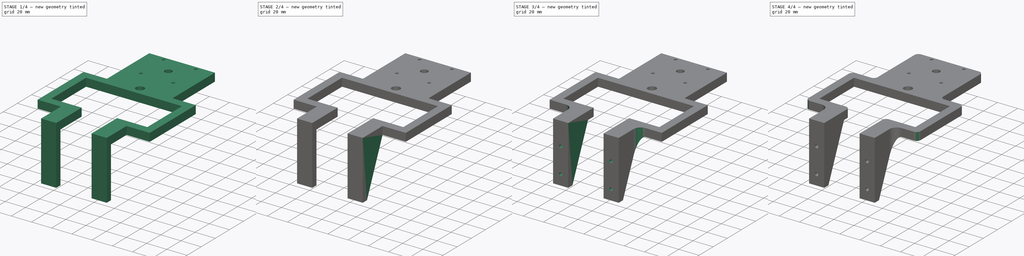
[diagram: build sequence overview — one tinted view per stage of 4, left to right]
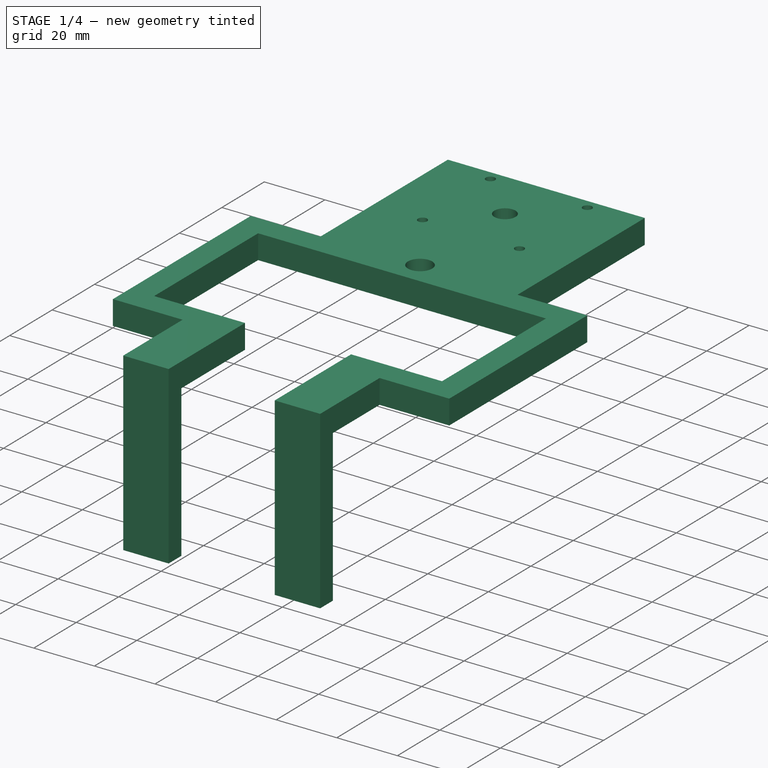
[diagram: stage 1 of 4 — iso view after this stage's code; geometry added in this stage tinted green]
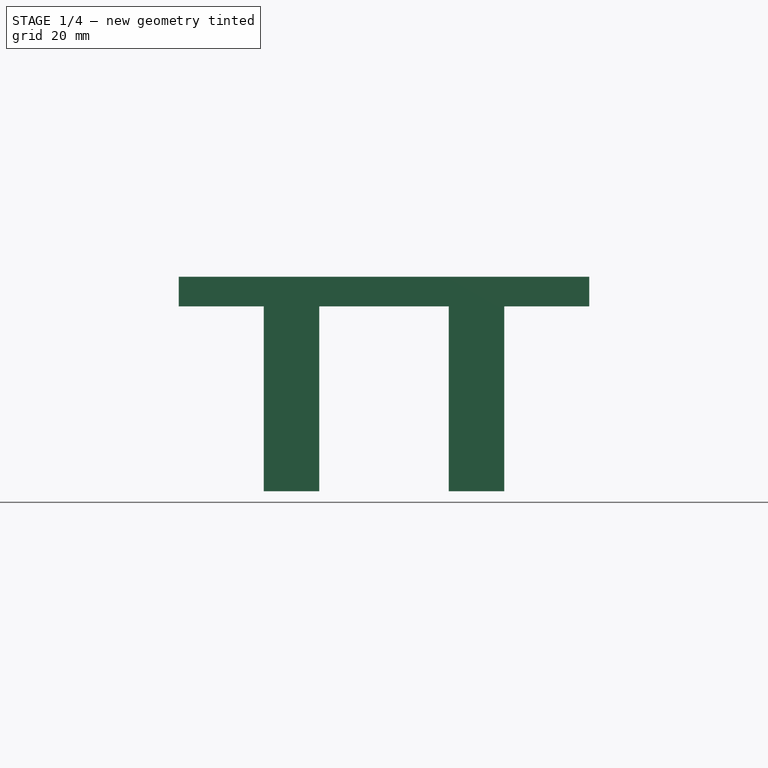
[diagram: stage 1 of 4 — front view after this stage's code; geometry added in this stage tinted green]
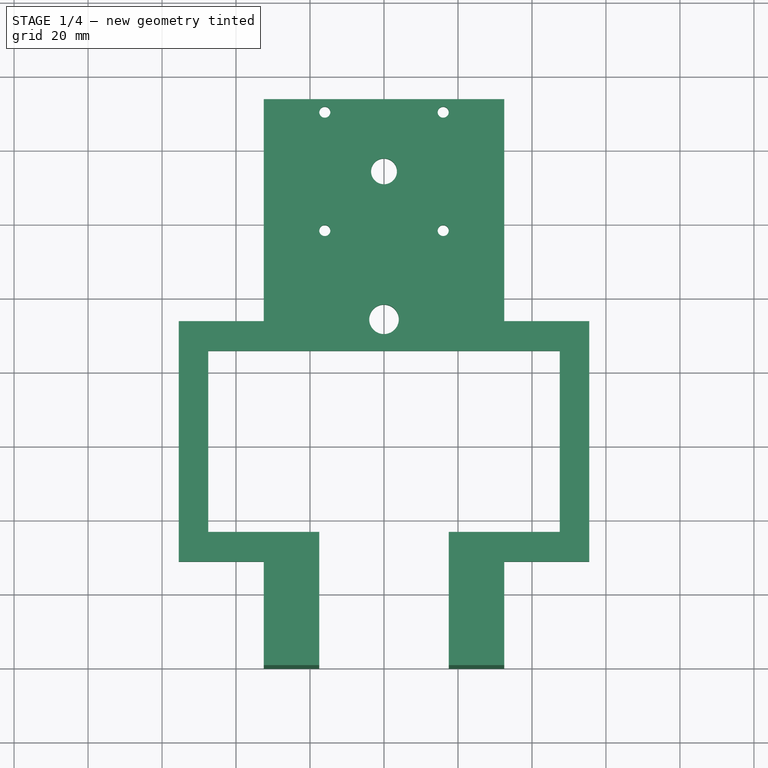
[diagram: stage 1 of 4 — top view after this stage's code; geometry added in this stage tinted green]
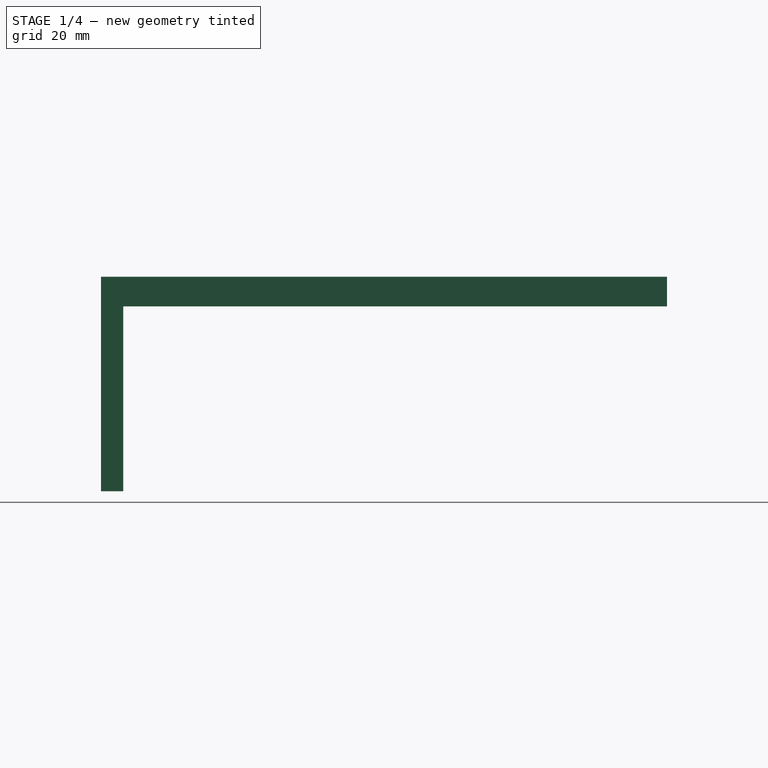
[diagram: stage 1 of 4 — right view after this stage's code; geometry added in this stage tinted green]
FCSTD DOCUMENT  (FreeCAD 1.0R39109 (Git))
Label: head_main_plate_mk2
License: All rights reserved
LicenseURL: http://en.wikipedia.org/wiki/All_rights_reserved
objects: Sketcher::SketchObject×7, PartDesign::Pad×6, PartDesign::Fillet×3, PartDesign::Pocket×1, PartDesign::Body×1
note: 45 computed .brp shape members not serialized (recipe doc carries the construction recipe); baked Part::Feature solids carry a one-line shape summary decoded from their .brp

FEATURE [Sketcher::SketchObject] Sketch
  ArcFitTolerance = 1e-06
  AttachmentSupport = -> [XY_Plane]
  FullyConstrained = true
  MakeInternals = false
  MapMode = 5
  sketch-geometry (28):
    g0: LineSegment StartX=-17.5 StartY=0 StartZ=0 EndX=-32.5 EndY=0 EndZ=0
    g1: LineSegment StartX=-32.5 StartY=153 StartZ=0 EndX=32.5 EndY=153 EndZ=0
    g2: LineSegment StartX=32.5 StartY=0 StartZ=0 EndX=17.5 EndY=0 EndZ=0
    g3: LineSegment StartX=17.5 StartY=85 StartZ=0 EndX=-17.5 EndY=85 EndZ=0
    g4: Circle CenterX=0 CenterY=93.5 CenterZ=0 NormalX=0 NormalY=0 NormalZ=1 AngleXU=0 Radius=4
    g5: Circle CenterX=0 CenterY=133.5 CenterZ=0 NormalX=0 NormalY=0 NormalZ=1 AngleXU=0 Radius=3.5
    g6: Circle CenterX=-16 CenterY=149.5 CenterZ=0 NormalX=0 NormalY=0 NormalZ=1 AngleXU=0 Radius=1.5
    g7: Circle CenterX=16 CenterY=149.5 CenterZ=0 NormalX=0 NormalY=0 NormalZ=1 AngleXU=0 Radius=1.5
    g8: Circle CenterX=16 CenterY=117.5 CenterZ=0 NormalX=0 NormalY=0 NormalZ=1 AngleXU=0 Radius=1.5
    g9: Circle CenterX=-16 CenterY=117.5 CenterZ=0 NormalX=0 NormalY=0 NormalZ=1 AngleXU=0 Radius=1.5
    g10: LineSegment StartX=32.5 StartY=0 StartZ=0 EndX=32.5 EndY=28 EndZ=0
    g11: LineSegment StartX=32.5 StartY=28 StartZ=0 EndX=55.5 EndY=28 EndZ=0
    g12: LineSegment StartX=55.5 StartY=28 StartZ=0 EndX=55.5 EndY=93 EndZ=0
    g13: LineSegment StartX=55.5 StartY=93 StartZ=0 EndX=32.5 EndY=93 EndZ=0
    g14: LineSegment StartX=32.5 StartY=93 StartZ=0 EndX=32.5 EndY=153 EndZ=0
    g15: LineSegment StartX=-32.5 StartY=153 StartZ=0 EndX=-32.5 EndY=93 EndZ=0
    g16: LineSegment StartX=-32.5 StartY=93 StartZ=0 EndX=-55.5 EndY=93 EndZ=0
    g17: LineSegment StartX=-55.5 StartY=93 StartZ=0 EndX=-55.5 EndY=28 EndZ=0
    g18: LineSegment StartX=-55.5 StartY=28 StartZ=0 EndX=-32.5 EndY=28 EndZ=0
    g19: LineSegment StartX=-32.5 StartY=28 StartZ=0 EndX=-32.5 EndY=0 EndZ=0
    g20: LineSegment StartX=-17.5 StartY=0 StartZ=0 EndX=-17.5 EndY=36 EndZ=0
    g21: LineSegment StartX=-17.5 StartY=36 StartZ=0 EndX=-47.5 EndY=36 EndZ=0
    g22: LineSegment StartX=-47.5 StartY=36 StartZ=0 EndX=-47.5 EndY=85 EndZ=0
    g23: LineSegment StartX=-47.5 StartY=85 StartZ=0 EndX=-17.5 EndY=85 EndZ=0
    g24: LineSegment StartX=17.5 StartY=85 StartZ=0 EndX=47.5 EndY=85 EndZ=0
    g25: LineSegment StartX=47.5 StartY=85 StartZ=0 EndX=47.5 EndY=36 EndZ=0
    g26: LineSegment StartX=47.5 StartY=36 StartZ=0 EndX=17.5 EndY=36 EndZ=0
    g27: LineSegment StartX=17.5 StartY=36 StartZ=0 EndX=17.5 EndY=0 EndZ=0
  constraints (81):
    c: PointOnObject(g0,g-1)
    c: PointOnObject(g0,g-1)
    c: PointOnObject(g2,g-1)
    c: Diameter(g4) = 8
    c: PointOnObject(g4,g-2)
    c: DistanceY(g-1,g4) = 93.5
    c: PointOnObject(g5,g-2)
    c: Diameter(g5) = 7
    c: DistanceY(g4,g5) = 40
    c: Diameter(g6) = 3
    c: Diameter(g8) = 3
    c: Diameter(g9) = 3
    c: Diameter(g7) = 3
    c: Horizontal(g7,g6)
    c: Horizontal(g8,g9)
    c: Vertical(g8,g7)
    c: Vertical(g9,g6)
    c: DistanceX(g6,g5) = 16
    c: DistanceX(g5,g8) = 16
    c: DistanceY(g5,g7) = 16
    c: DistanceY(g8,g7) = 32
    c: Symmetric(g2,g0,g-1)
    c: DistanceX(g0,g2) = 65
    c: DistanceX(g2,g2) = 15
    c: Symmetric(g3,g3,g-2)
    c: DistanceY(g2,g3) = 85
    c: DistanceY(g2,g1) = 153
    c: Coincident(g2,g10)
    c: Vertical(g10)
    c: Coincident(g10,g11)
    c: Horizontal(g11)
    c: Coincident(g11,g12)
    c: Vertical(g12)
    c: Coincident(g12,g13)
    c: Horizontal(g13)
    c: Coincident(g13,g14)
    c: Coincident(g14,g1)
    c: Vertical(g14)
    c: Coincident(g1,g15)
    c: Vertical(g15)
    c: Coincident(g15,g16)
    c: Horizontal(g16)
    c: Vertical(g17)
    c: Coincident(g17,g18)
    c: Horizontal(g18)
    c: Coincident(g18,g19)
    c: Coincident(g19,g0)
    c: Coincident(g0,g20)
    c: Vertical(g20)
    c: Coincident(g20,g21)
    c: Horizontal(g21)
    c: Coincident(g21,g22)
    c: Vertical(g22)
    c: Coincident(g22,g23)
    c: Horizontal(g23)
    c: Horizontal(g24)
    c: Coincident(g24,g25)
    c: Vertical(g25)
    c: Coincident(g25,g26)
    c: Horizontal(g26)
    c: Coincident(g26,g27)
    c: Coincident(g27,g2)
    c: Vertical(g27)
    c: Vertical(g19)
    c: DistanceY(g10,g10) = 28
    c: DistanceY(g19,g19) = 28
    c: DistanceY(g27,g27) = 36
    c: DistanceY(g20,g20) = 36
    c: DistanceX(g0,g0) = 15
    c: DistanceX(g21,g21) = 30
    c: DistanceX(g26,g26) = 30
    c: Symmetric(g1,g1,g-2)
    c: DistanceX(g1,g1) = 65
    c: Coincident(g3,g24)
    c: Coincident(g23,g3)
    c: DistanceX(g25,g11) = 8
    c: DistanceY(g24,g12) = 8
    c: DistanceY(g22,g16) = 8
    c: DistanceX(g16,g22) = 8
    c: DistanceX(g3,g3) = 35
    c: Coincident(g17,g16)
FEATURE [PartDesign::Pad] Pad
  Direction = (0,0,1)
  Length = 8
  Length2 = 10
  Profile = -> Sketch
  ReferenceAxis = -> Sketch [N_Axis]
  Refine = true
  Suppressed = false
  Type = 0
FEATURE [Sketcher::SketchObject] Sketch001
  ArcFitTolerance = 1e-06
  AttachmentSupport = -> [Pad]
  ExternalGeometry = -> [Pad]
  FullyConstrained = true
  MakeInternals = false
  MapMode = 5
  Placement = pos=(0,0,0) rot=(1,0,0;3.14159rad)
  sketch-geometry (8):
    g0: LineSegment StartX=-32.5 StartY=0 StartZ=0 EndX=-32.5 EndY=-6 EndZ=0
    g1: LineSegment StartX=-32.5 StartY=-6 StartZ=0 EndX=-17.5 EndY=-6 EndZ=0
    g2: LineSegment StartX=-17.5 StartY=-6 StartZ=0 EndX=-17.5 EndY=0 EndZ=0
    g3: LineSegment StartX=-17.5 StartY=0 StartZ=0 EndX=-32.5 EndY=0 EndZ=0
    g4: LineSegment StartX=17.5 StartY=0 StartZ=0 EndX=17.5 EndY=-6 EndZ=0
    g5: LineSegment StartX=17.5 StartY=-6 StartZ=0 EndX=32.5 EndY=-6 EndZ=0
    g6: LineSegment StartX=32.5 StartY=-6 StartZ=0 EndX=32.5 EndY=0 EndZ=0
    g7: LineSegment StartX=32.5 StartY=0 StartZ=0 EndX=17.5 EndY=0 EndZ=0
  constraints (22):
    c: Coincident(g0,g1)
    c: Coincident(g1,g2)
    c: Coincident(g2,g3)
    c: Coincident(g3,g0)
    c: Vertical(g0)
    c: Vertical(g2)
    c: Horizontal(g1)
    c: Horizontal(g3)
    c: Coincident(g0,g-6)
    c: PointOnObject(g1,g-3)
    c: Coincident(g4,g5)
    c: Coincident(g5,g6)
    c: Coincident(g6,g7)
    c: Coincident(g7,g4)
    c: Vertical(g4)
    c: Vertical(g6)
    c: Horizontal(g5)
    c: Horizontal(g7)
    c: Coincident(g4,g-4)
    c: PointOnObject(g5,g-5)
    c: DistanceY(g6,g6) = 6
    c: DistanceY(g2,g2) = 6
FEATURE [PartDesign::Pad] Pad001
  BaseFeature = -> Pad
  Direction = (0,0,-1)
  Length = 50
  Length2 = 10
  Profile = -> Sketch001
  ReferenceAxis = -> Sketch001 [N_Axis]
  Refine = true
  Suppressed = false
  Type = 0
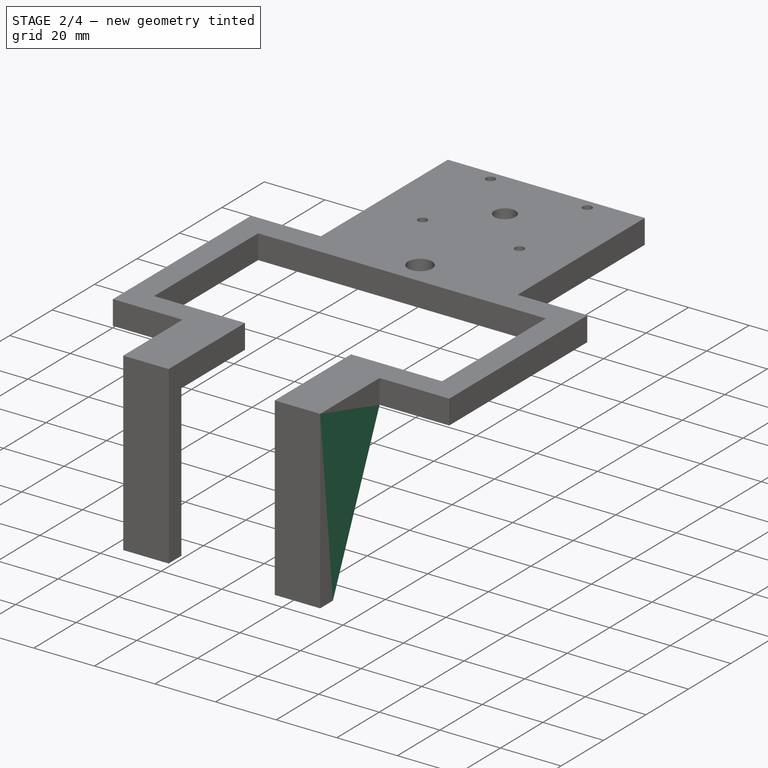
[diagram: stage 2 of 4 — iso view after this stage's code; geometry added in this stage tinted green]
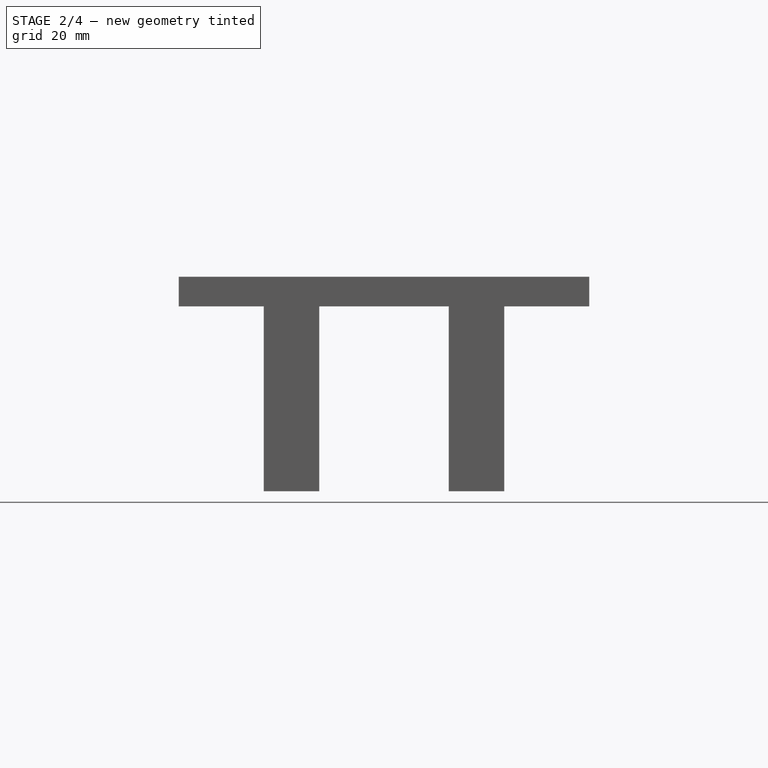
[diagram: stage 2 of 4 — front view after this stage's code; geometry added in this stage tinted green]
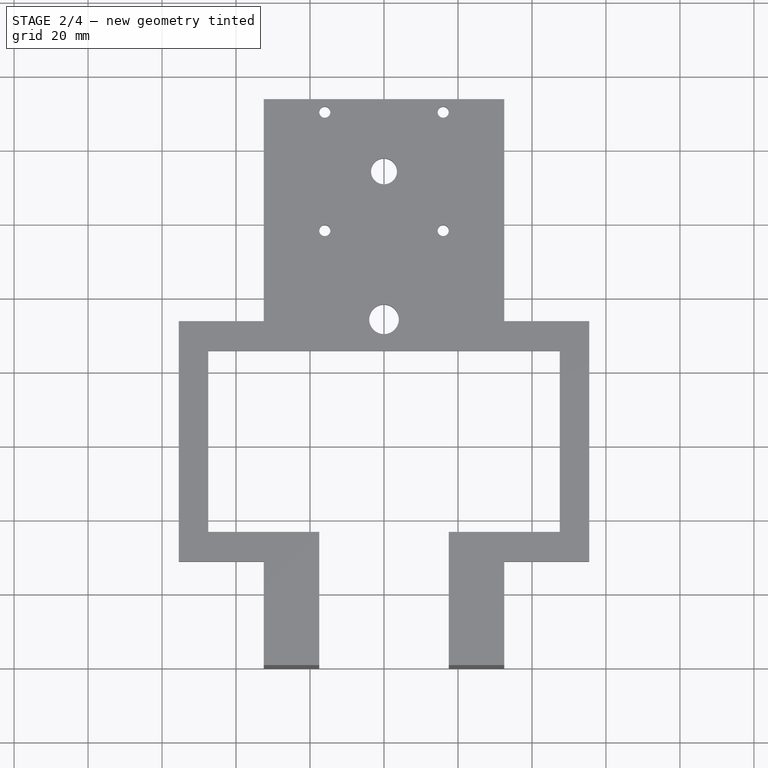
[diagram: stage 2 of 4 — top view after this stage's code; geometry added in this stage tinted green]
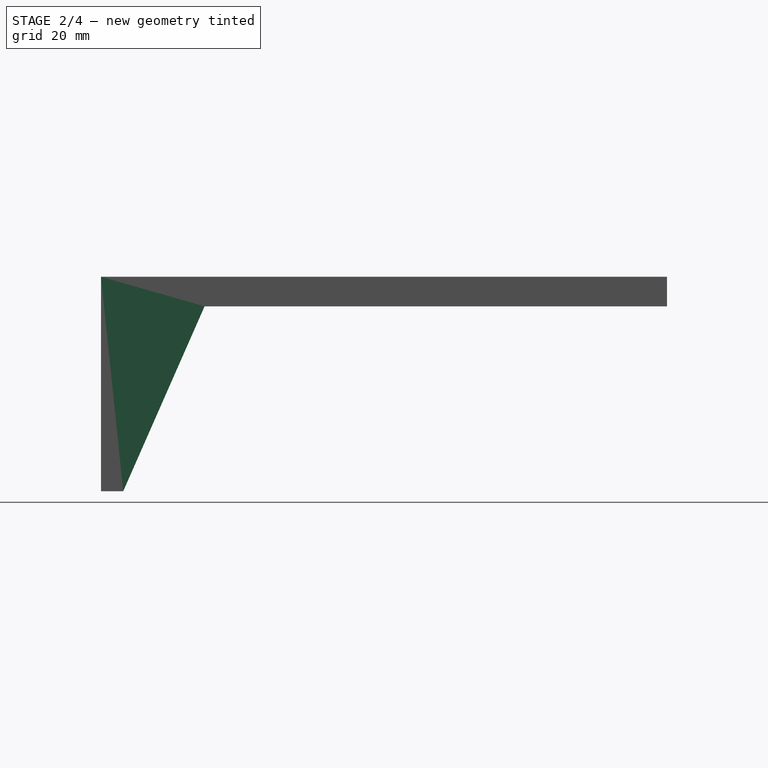
[diagram: stage 2 of 4 — right view after this stage's code; geometry added in this stage tinted green]
FEATURE [Sketcher::SketchObject] Sketch002
  ArcFitTolerance = 1e-06
  AttachmentSupport = -> [Pad001]
  ExternalGeometry = -> [Pad001]
  FullyConstrained = true
  MakeInternals = false
  MapMode = 5
  Placement = pos=(32.5,0,0) rot=(0.57735,0.57735,0.57735;2.0944rad)
  sketch-geometry (3):
    g0: LineSegment StartX=6 StartY=0 StartZ=0 EndX=6 EndY=-50 EndZ=0
    g1: LineSegment StartX=6 StartY=-50 StartZ=0 EndX=28 EndY=0 EndZ=0
    g2: LineSegment StartX=28 StartY=0 StartZ=0 EndX=6 EndY=0 EndZ=0
  constraints (6):
    c: Coincident(g-4,g0)
    c: Coincident(g0,g-3)
    c: Coincident(g0,g1)
    c: Coincident(g1,g-4)
    c: Coincident(g1,g2)
    c: Coincident(g2,g0)
FEATURE [PartDesign::Pad] Pad002
  BaseFeature = -> Pad001
  Direction = (1,0,0)
  Length = 2.5
  Length2 = 10
  Profile = -> Sketch002
  ReferenceAxis = -> Sketch002 [N_Axis]
  Refine = true
  Reversed = true
  Suppressed = false
  Type = 0
FEATURE [Sketcher::SketchObject] Sketch003
  ArcFitTolerance = 1e-06
  AttachmentSupport = -> [Pad002]
  ExternalGeometry = -> [Pad002]
  FullyConstrained = true
  MakeInternals = false
  MapMode = 5
  Placement = pos=(17.5,0,0) rot=(0.57735,-0.57735,-0.57735;2.0944rad)
  sketch-geometry (3):
    g0: LineSegment StartX=-6 StartY=0 StartZ=0 EndX=-28 EndY=0 EndZ=0
    g1: LineSegment StartX=-28 StartY=0 StartZ=0 EndX=-6 EndY=-50 EndZ=0
    g2: LineSegment StartX=-6 StartY=-50 StartZ=0 EndX=-6 EndY=0 EndZ=0
  constraints (6):
    c: Coincident(g-4,g0)
    c: Coincident(g0,g-3)
    c: Coincident(g0,g1)
    c: Coincident(g1,g-4)
    c: Coincident(g1,g2)
    c: Coincident(g2,g0)
FEATURE [PartDesign::Pad] Pad003
  BaseFeature = -> Pad002
  Direction = (-1,0,0)
  Length = 2.5
  Length2 = 10
  Profile = -> Sketch003
  ReferenceAxis = -> Sketch003 [N_Axis]
  Refine = true
  Reversed = true
  Suppressed = false
  Type = 0
FEATURE [Sketcher::SketchObject] Sketch004
  ArcFitTolerance = 1e-06
  AttachmentSupport = -> [Pad003]
  ExternalGeometry = -> [Pad003]
  FullyConstrained = true
  MakeInternals = false
  MapMode = 5
  Placement = pos=(-32.5,0,0) rot=(0.57735,-0.57735,-0.57735;2.0944rad)
  sketch-geometry (3):
    g0: LineSegment StartX=-6 StartY=-50 StartZ=0 EndX=-6 EndY=0 EndZ=0
    g1: LineSegment StartX=-6 StartY=0 StartZ=0 EndX=-28 EndY=0 EndZ=0
    g2: LineSegment StartX=-28 StartY=0 StartZ=0 EndX=-6 EndY=-50 EndZ=0
  constraints (6):
    c: Coincident(g-3,g0)
    c: Coincident(g0,g-4)
    c: Coincident(g0,g1)
    c: Coincident(g1,g-4)
    c: Coincident(g1,g2)
    c: Coincident(g2,g0)
FEATURE [PartDesign::Pad] Pad004
  BaseFeature = -> Pad003
  Direction = (-1,0,0)
  Length = 2.5
  Length2 = 10
  Profile = -> Sketch004
  ReferenceAxis = -> Sketch004 [N_Axis]
  Refine = true
  Reversed = true
  Suppressed = false
  Type = 0
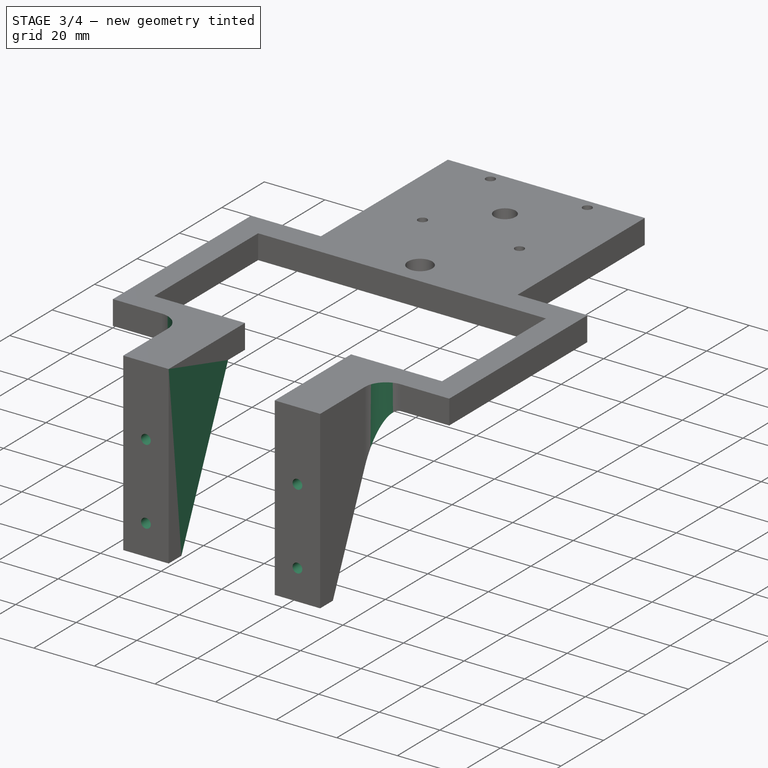
[diagram: stage 3 of 4 — iso view after this stage's code; geometry added in this stage tinted green]
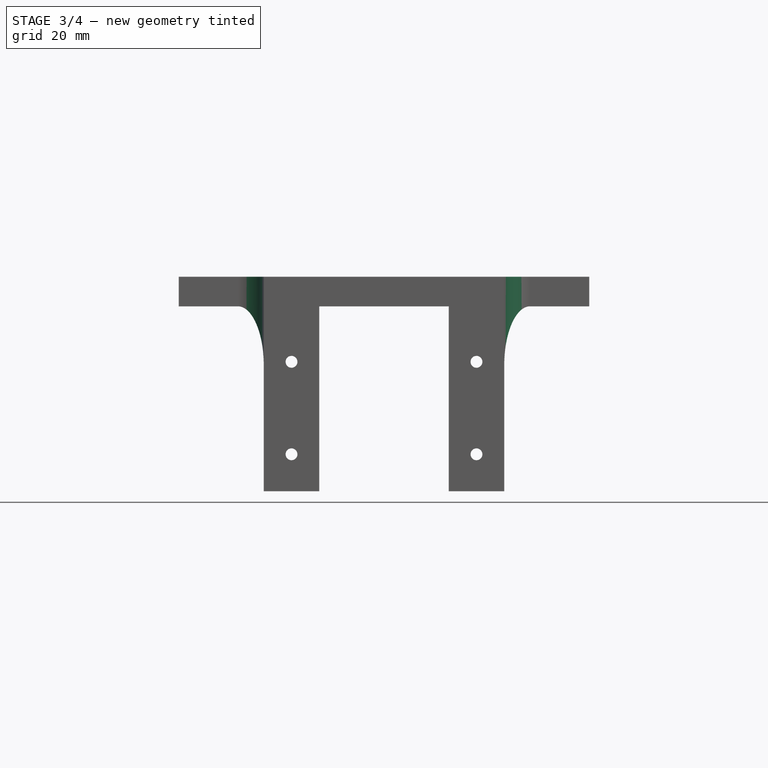
[diagram: stage 3 of 4 — front view after this stage's code; geometry added in this stage tinted green]
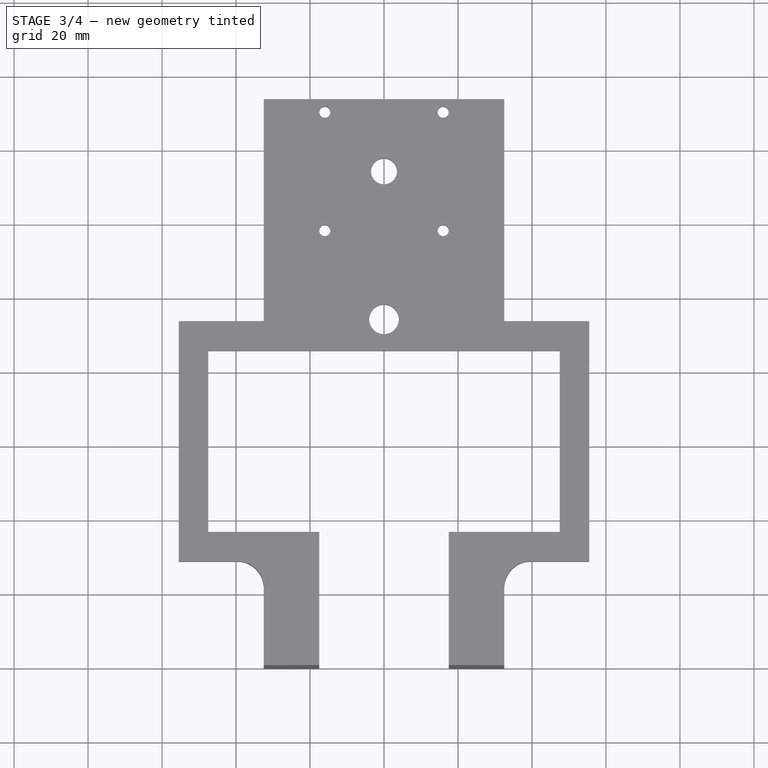
[diagram: stage 3 of 4 — top view after this stage's code; geometry added in this stage tinted green]
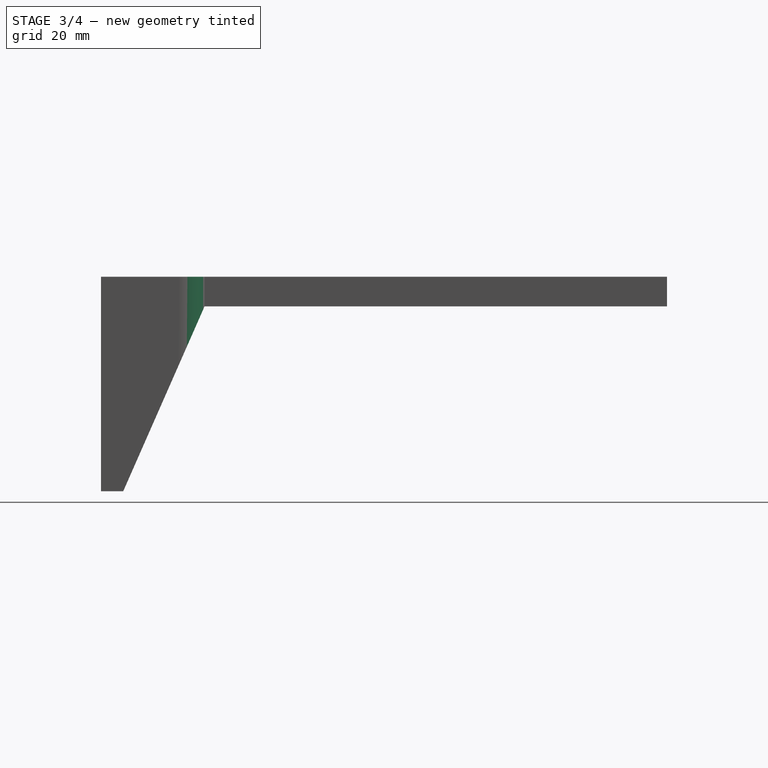
[diagram: stage 3 of 4 — right view after this stage's code; geometry added in this stage tinted green]
FEATURE [Sketcher::SketchObject] Sketch005
  ArcFitTolerance = 1e-06
  AttachmentSupport = -> [Pad004]
  ExternalGeometry = -> [Pad004]
  FullyConstrained = true
  MakeInternals = false
  MapMode = 5
  Placement = pos=(-17.5,0,0) rot=(0.57735,0.57735,0.57735;2.0944rad)
  sketch-geometry (3):
    g0: LineSegment StartX=28 StartY=0 StartZ=0 EndX=6 EndY=0 EndZ=0
    g1: LineSegment StartX=6 StartY=0 StartZ=0 EndX=6 EndY=-50 EndZ=0
    g2: LineSegment StartX=6 StartY=-50 StartZ=0 EndX=28 EndY=0 EndZ=0
  constraints (6):
    c: Coincident(g-3,g0)
    c: Coincident(g0,g-5)
    c: Coincident(g0,g1)
    c: Coincident(g1,g-5)
    c: Coincident(g1,g2)
    c: Coincident(g2,g0)
FEATURE [PartDesign::Pad] Pad005
  BaseFeature = -> Pad004
  Direction = (1,0,0)
  Length = 2.5
  Length2 = 10
  Profile = -> Sketch005
  ReferenceAxis = -> Sketch005 [N_Axis]
  Refine = true
  Reversed = true
  Suppressed = false
  Type = 0
FEATURE [Sketcher::SketchObject] Sketch006
  ArcFitTolerance = 1e-06
  AttachmentSupport = -> [Pad005]
  ExternalGeometry = -> [Pad005]
  FullyConstrained = true
  MakeInternals = false
  MapMode = 5
  Placement = pos=(0,0,0) rot=(1,0,0;1.5708rad)
  sketch-geometry (4):
    g0: Circle CenterX=25 CenterY=-40 CenterZ=0 NormalX=0 NormalY=0 NormalZ=1 AngleXU=0 Radius=1.6
    g1: Circle CenterX=25 CenterY=-15 CenterZ=0 NormalX=0 NormalY=0 NormalZ=1 AngleXU=0 Radius=1.6
    g2: Circle CenterX=-25 CenterY=-15 CenterZ=0 NormalX=0 NormalY=0 NormalZ=1 AngleXU=0 Radius=1.6
    g3: Circle CenterX=-25 CenterY=-40 CenterZ=0 NormalX=0 NormalY=0 NormalZ=1 AngleXU=0 Radius=1.6
  constraints (12):
    c: Diameter(g2) = 3.2
    c: Diameter(g3) = 3.2
    c: Diameter(g0) = 3.2
    c: Diameter(g1) = 3.2
    c: Vertical(g1,g0)
    c: Vertical(g2,g3)
    c: DistanceY(g3,g2) = 25
    c: DistanceY(g0,g1) = 25
    c: Horizontal(g1,g2)
    c: DistanceX(g-3,g1) = 7.5
    c: DistanceY(g-3,g0) = 10
    c: DistanceX(g3,g-4) = 7.5
FEATURE [PartDesign::Pocket] Pocket
  BaseFeature = -> Pad005
  Direction = (0,1,-2e-16)
  Length = 6
  Length2 = 5
  Profile = -> Sketch006
  ReferenceAxis = -> Sketch006 [N_Axis]
  Refine = true
  Suppressed = false
  Type = 0
FEATURE [PartDesign::Fillet] Fillet
  Base = -> Pocket [Edge32,Edge51]
  BaseFeature = -> Pocket
  Radius = 7
  Refine = true
  SupportTransform = false
  Suppressed = false
  UseAllEdges = false
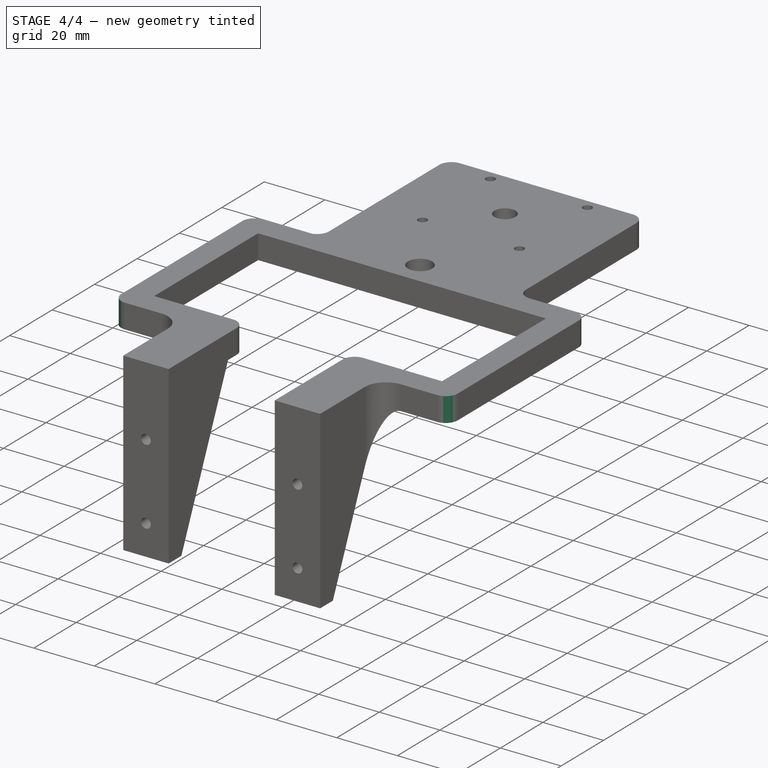
[diagram: stage 4 of 4 — iso view after this stage's code; geometry added in this stage tinted green]
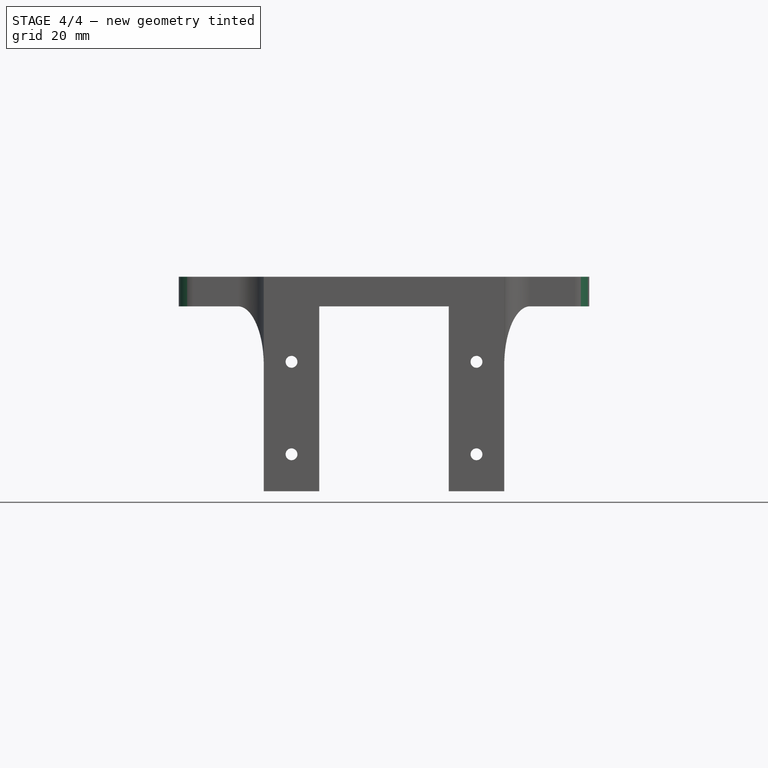
[diagram: stage 4 of 4 — front view after this stage's code; geometry added in this stage tinted green]
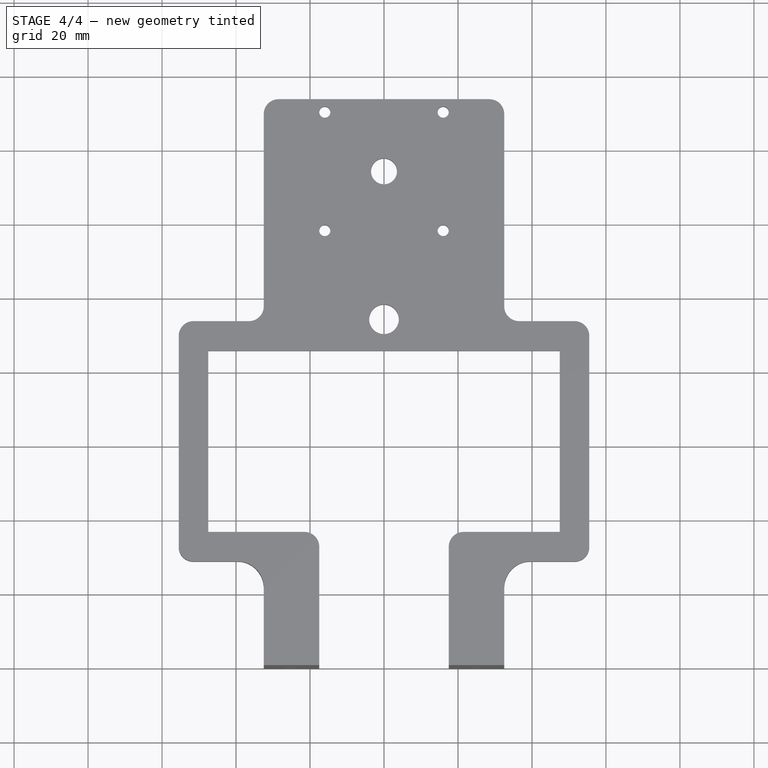
[diagram: stage 4 of 4 — top view after this stage's code; geometry added in this stage tinted green]
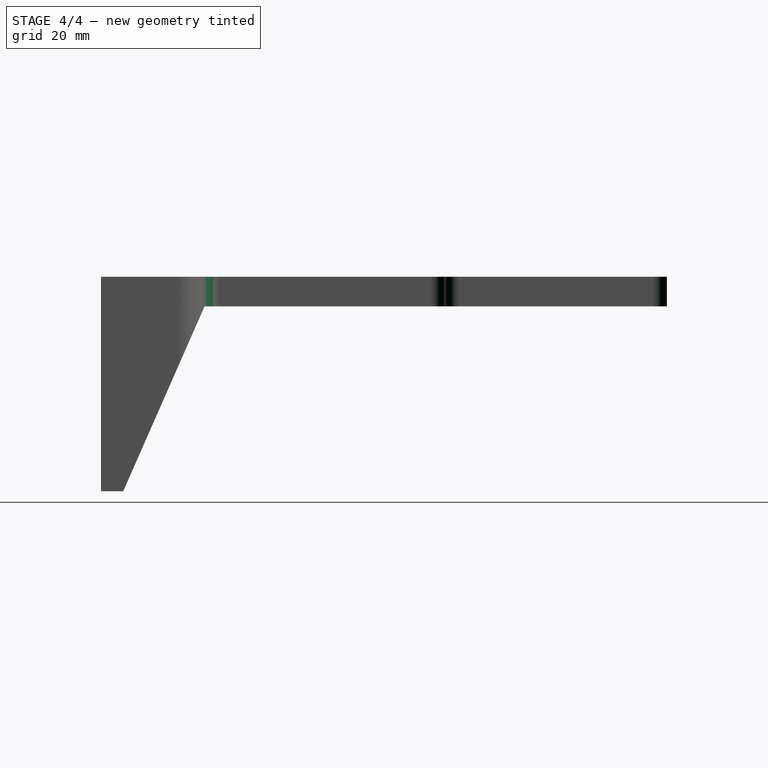
[diagram: stage 4 of 4 — right view after this stage's code; geometry added in this stage tinted green]
FEATURE [PartDesign::Fillet] Fillet001
  Base = -> Fillet [Edge40,Edge45,Edge49,Edge53,Edge57,Edge61,Edge65,Edge71]
  BaseFeature = -> Fillet
  Radius = 4
  Refine = true
  SupportTransform = false
  Suppressed = false
  UseAllEdges = false
FEATURE [PartDesign::Fillet] Fillet002
  Base = -> Fillet001 [Edge79,Edge60]
  BaseFeature = -> Fillet001
  Radius = 4
  Refine = true
  SupportTransform = false
  Suppressed = false
  UseAllEdges = false
FEATURE [PartDesign::Body] Body
  AllowCompound = false
  Group = -> [Sketch,Pad,Sketch001,Pad001,Sketch002,Pad002,Sketch003,Pad003,Sketch004,Pad004,Sketch005,Pad005,Sketch006,Pocket,Fillet,Fillet001,Fillet002]
  Origin = -> Origin
  Tip = -> Fillet002
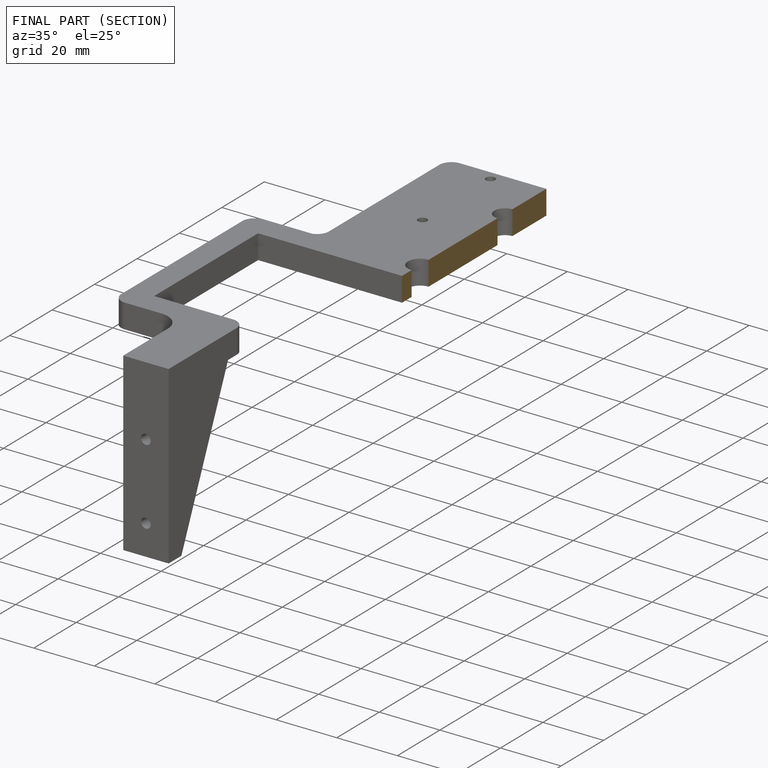
[diagram: finished part — half-section view (interior)]
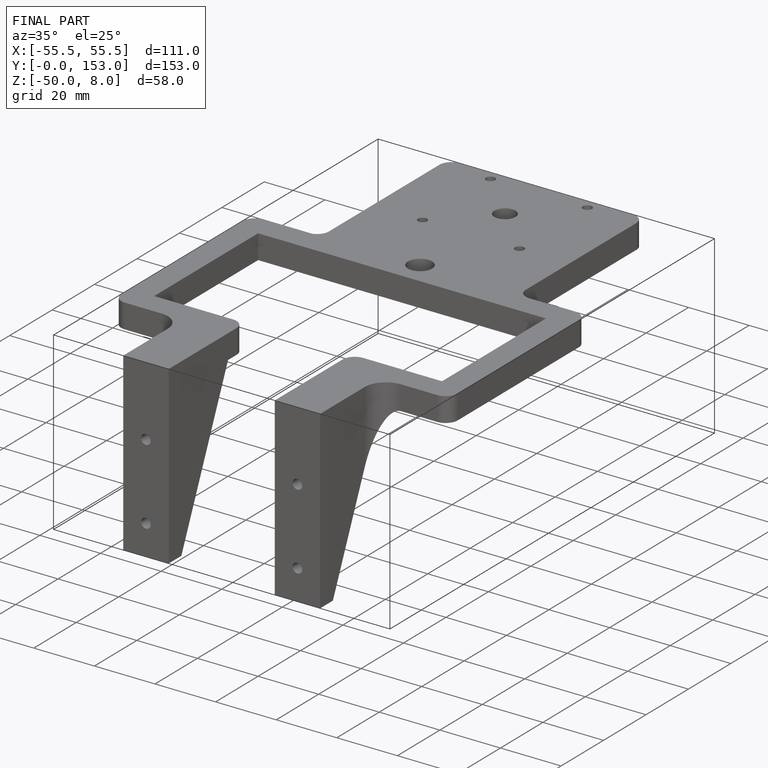
[diagram: finished part — iso view with bounding-box wireframe]
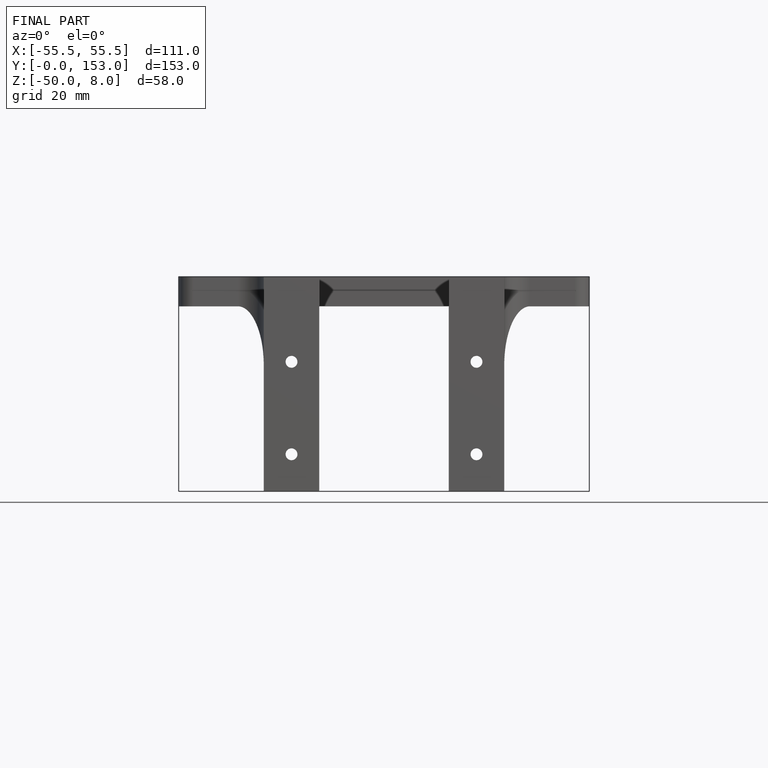
[diagram: finished part — front view with bounding-box wireframe]
